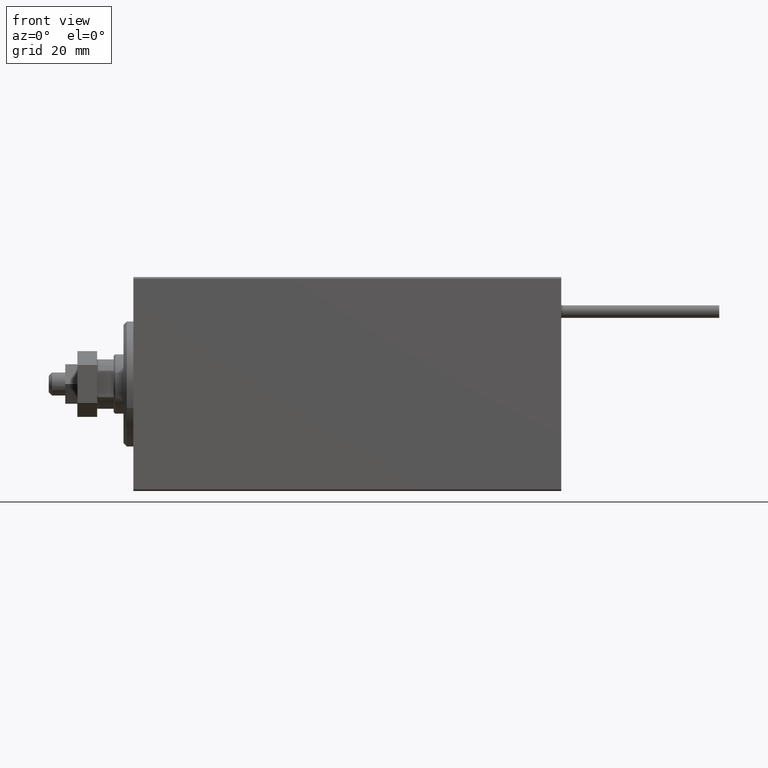
[diagram: clean part render]
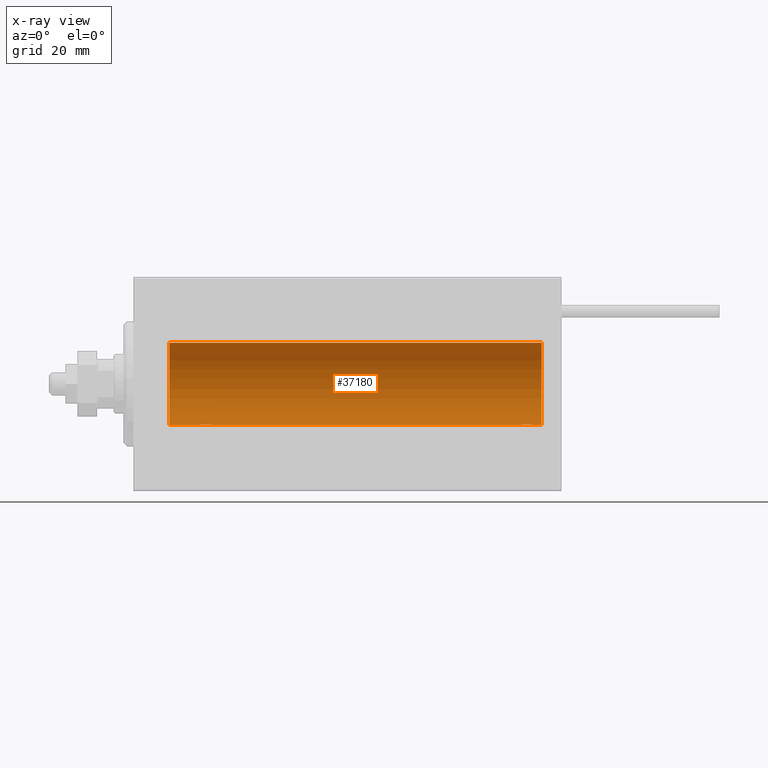
[diagram: x-ray — body ghosted, one internal face saturated and labeled with its STEP entity id]
A machine part, front view, then the same camera in x-ray: the body is ghosted and one INTERNAL B-rep face — a face not visible from any outside direction — is saturated and labeled: STEP entity #37180.
In plain terms, the highlighted cylindrical surface (partial cylindrical patch) has radius 12.5 mm, axis along (-1, -0, -0).
Its self-contained STEP definition (entity closure, byte-faithful):
#708 = CARTESIAN_POINT ( 'NONE',  ( 20.01301208516349206, 0.2624928479599882847, -12.49789934882883458 ) ) ;
#960 = CARTESIAN_POINT ( 'NONE',  ( 24.00000000000000000, 1.530808426277417854E-15, -12.50000000000000000 ) ) ;
#1224 = CARTESIAN_POINT ( 'NONE',  ( 23.79742491916155700, 0.8868029758979399935, -12.46909283808506430 ) ) ;
#1649 = VERTEX_POINT ( 'NONE', #9535 ) ;
#1828 = CARTESIAN_POINT ( 'NONE',  ( 124.0000000000000000, 0.000000000000000000, 0.000000000000000000 ) ) ;
#1910 = CARTESIAN_POINT ( 'NONE',  ( 10.99999999999999645, 0.000000000000000000, 0.000000000000000000 ) ) ;
#3273 = CARTESIAN_POINT ( 'NONE',  ( 120.3865631353301922, 1.797558627508983875, -12.37018026341339194 ) ) ;
#3356 = VERTEX_POINT ( 'NONE', #37943 ) ;
#3362 = EDGE_CURVE ( 'NONE', #1649, #18831, #41268, .T. ) ;
#3771 = CARTESIAN_POINT ( 'NONE',  ( 121.5000000000000284, 0.1306394121199379310, -12.50000000000000178 ) ) ;
#4239 = CARTESIAN_POINT ( 'NONE',  ( 124.0000000000000000, 1.530808498934191521E-15, -12.50000000000000000 ) ) ;
#4511 = CARTESIAN_POINT ( 'NONE',  ( 23.98690384766256400, 0.2633501011236120681, -12.49788564268284041 ) ) ;
#4729 = CARTESIAN_POINT ( 'NONE',  ( 124.0000000000000000, 1.530808498934191521E-15, -12.50000000000000000 ) ) ;
#4756 = CARTESIAN_POINT ( 'NONE',  ( 21.47436412829510033, 1.947190906025044077, -12.34781876294798053 ) ) ;
#5267 = CARTESIAN_POINT ( 'NONE',  ( 23.32102833500698225, 1.507394620545640773, -12.40913174964213184 ) ) ;
#5428 = ORIENTED_EDGE ( 'NONE', *, *, #13773, .T. ) ;
#7114 = ORIENTED_EDGE ( 'NONE', *, *, #14396, .T. ) ;
#7329 = CARTESIAN_POINT ( 'NONE',  ( 117.5000000000000142, -1.169483437805093529E-14, -12.50000000000000000 ) ) ;
#7595 = ORIENTED_EDGE ( 'NONE', *, *, #10037, .F. ) ;
#8044 = LINE ( 'NONE', #4239, #43659 ) ;
#8580 = CARTESIAN_POINT ( 'NONE',  ( 22.64415233770293412, 1.897967064543090165, -12.35517291625592051 ) ) ;
#8827 = CARTESIAN_POINT ( 'NONE',  ( 20.26446744561862801, 1.002494658017155871, -12.46021263690096958 ) ) ;
#9086 = CARTESIAN_POINT ( 'NONE',  ( 20.49398366327207910, 1.322451657002076120, -12.43019346654084956 ) ) ;
#9341 = CARTESIAN_POINT ( 'NONE',  ( 23.00335814299181436, 1.734998657226765939, -12.37922086519035325 ) ) ;
#9535 = CARTESIAN_POINT ( 'NONE',  ( 124.0000000000000000, 0.000000000000000000, 12.50000000000000000 ) ) ;
#9590 = CIRCLE ( 'NONE', #47847, 12.50000000000000000 ) ;
#9696 = DIRECTION ( 'NONE',  ( 0.000000000000000000, 0.000000000000000000, 1.000000000000000000 ) ) ;
#10037 = EDGE_CURVE ( 'NONE', #16404, #3356, #8044, .T. ) ;
#10653 = CARTESIAN_POINT ( 'NONE',  ( 121.2974249191616138, 0.8868029758979325550, -12.46909283808506430 ) ) ;
#10931 = CARTESIAN_POINT ( 'NONE',  ( 19.99999999999999645, -3.966047509268588167E-15, -12.50000000000000000 ) ) ;
#11158 = CARTESIAN_POINT ( 'NONE',  ( 118.2703350612685398, 1.598680238462349301, -12.39873273758732353 ) ) ;
#11402 = CARTESIAN_POINT ( 'NONE',  ( 117.6025227029819717, 0.6455696738844808324, -12.48390768591463384 ) ) ;
#11782 = VERTEX_POINT ( 'NONE', #49660 ) ;
#11887 = DIRECTION ( 'NONE',  ( -1.000000000000000000, -0.000000000000000000, -0.000000000000000000 ) ) ;
#12137 = CARTESIAN_POINT ( 'NONE',  ( 20.77033506126850426, 1.598680238462369951, -12.39873273758732175 ) ) ;
#12236 = DIRECTION ( 'NONE',  ( -1.000000000000000000, -0.000000000000000000, -0.000000000000000000 ) ) ;
#13147 = CARTESIAN_POINT ( 'NONE',  ( 20.10252270298193622, 0.6455696738844897142, -12.48390768591463207 ) ) ;
#13773 = EDGE_CURVE ( 'NONE', #18831, #34876, #9590, .T. ) ;
#14095 = CYLINDRICAL_SURFACE ( 'NONE', #28880, 12.50000000000000000 ) ;
#14098 = VECTOR ( 'NONE', #11887, 1000.000000000000000 ) ;
#14243 = CARTESIAN_POINT ( 'NONE',  ( 117.7644674456187062, 1.002494658017142104, -12.46021263690097669 ) ) ;
#14396 = EDGE_CURVE ( 'NONE', #11782, #3356, #41156, .T. ) ;
#14486 = CARTESIAN_POINT ( 'NONE',  ( 117.9096331999059828, 1.219754986802265462, -12.44082361696003680 ) ) ;
#14731 = CARTESIAN_POINT ( 'NONE',  ( 121.4356177452185506, 0.5201193324741325563, -12.48983485452575337 ) ) ;
#14770 = LINE ( 'NONE', #35074, #14098 ) ;
#15235 = CARTESIAN_POINT ( 'NONE',  ( 120.1441523377029768, 1.897967064543075066, -12.35517291625592406 ) ) ;
#15583 = B_SPLINE_CURVE_WITH_KNOTS ( 'NONE', 3,
 ( #20554, #16987, #708, #40165, #13147, #47031, #8827, #43967, #9086, #12137, #28222, #4756, #47548, #24639, #20297, #36577, #8580, #28725, #9341, #24376, #5267, #39907, #36092, #27967, #1224, #16748, #35588, #4511, #27700, #960 ),
 .UNSPECIFIED., .F., .F.,
 ( 4, 2, 2, 2, 2, 2, 2, 2, 2, 2, 2, 2, 2, 2, 4 ),
 ( 3.611342868676865251E-19, 0.0003914362731607586585, 0.0007828725463215168833, 0.001174308819482275217, 0.001565745092643033550, 0.002348617638964549999, 0.003131490185286066666, 0.003522926458446830420, 0.003914362731607594174, 0.004305799004768357495, 0.004697235277929121683, 0.005088671551089885003, 0.005480107824250649191, 0.005871544097411412512, 0.006262980370572176700 ),
 .UNSPECIFIED. ) ;
#15712 = AXIS2_PLACEMENT_3D ( 'NONE', #1828, #17358, #9696 ) ;
#16075 = CARTESIAN_POINT ( 'NONE',  ( 124.0000000000000000, 1.530808498934191521E-15, -12.50000000000000000 ) ) ;
#16404 = VERTEX_POINT ( 'NONE', #4729 ) ;
#16748 = CARTESIAN_POINT ( 'NONE',  ( 23.89773031393658087, 0.6448065707253023415, -12.48394649977302073 ) ) ;
#16987 = CARTESIAN_POINT ( 'NONE',  ( 19.99999999999999645, 0.1323736289504319763, -12.50000000000000000 ) ) ;
#17358 = DIRECTION ( 'NONE',  ( -1.000000000000000000, 0.000000000000000000, 0.000000000000000000 ) ) ;
#18831 = VERTEX_POINT ( 'NONE', #28591 ) ;
#19011 = CARTESIAN_POINT ( 'NONE',  ( 10.99999999999999645, 1.530808498934191521E-15, -12.50000000000000000 ) ) ;
#19787 = DIRECTION ( 'NONE',  ( -1.000000000000000000, -0.000000000000000000, -0.000000000000000000 ) ) ;
#19898 = LINE ( 'NONE', #16075, #27834 ) ;
#20297 = CARTESIAN_POINT ( 'NONE',  ( 22.26269462454597914, 1.986986967296540119, -12.34109209020652465 ) ) ;
#20554 = CARTESIAN_POINT ( 'NONE',  ( 19.99999999999999645, -3.966047509268588167E-15, -12.50000000000000000 ) ) ;
#22133 = CARTESIAN_POINT ( 'NONE',  ( 121.3977303139366200, 0.6448065707252962353, -12.48394649977302606 ) ) ;
#22380 = CARTESIAN_POINT ( 'NONE',  ( 117.7030078837138518, 0.8876934327478018805, -12.46903010196599659 ) ) ;
#22629 = CARTESIAN_POINT ( 'NONE',  ( 117.9939836632721324, 1.322451657002056358, -12.43019346654085311 ) ) ;
#22886 = CARTESIAN_POINT ( 'NONE',  ( 121.2347074239761611, 1.003863686549161915, -12.46009879577771606 ) ) ;
#23417 = ORIENTED_EDGE ( 'NONE', *, *, #47211, .F. ) ;
#24376 = CARTESIAN_POINT ( 'NONE',  ( 23.21980790594580313, 1.590288205413975309, -12.39864157855465088 ) ) ;
#24639 = CARTESIAN_POINT ( 'NONE',  ( 22.12992629360264729, 2.000049200055402210, -12.33895470450623044 ) ) ;
#25316 = CARTESIAN_POINT ( 'NONE',  ( 124.0000000000000000, 0.000000000000000000, 0.000000000000000000 ) ) ;
#26209 = CARTESIAN_POINT ( 'NONE',  ( 120.7198079059458138, 1.590288205413961986, -12.39864157855465265 ) ) ;
#26467 = CARTESIAN_POINT ( 'NONE',  ( 119.7626946245460147, 1.986986967296522799, -12.34109209020653175 ) ) ;
#27700 = CARTESIAN_POINT ( 'NONE',  ( 24.00000000000000711, 0.1306394121199392910, -12.50000000000000533 ) ) ;
#27828 = CARTESIAN_POINT ( 'NONE',  ( 24.00000000000000000, 1.530808426277417854E-15, -12.50000000000000000 ) ) ;
#27834 = VECTOR ( 'NONE', #12236, 1000.000000000000000 ) ;
#27947 = CIRCLE ( 'NONE', #15712, 12.50000000000000000 ) ;
#27967 = CARTESIAN_POINT ( 'NONE',  ( 23.73470742397611843, 1.003863686549172352, -12.46009879577771606 ) ) ;
#28222 = CARTESIAN_POINT ( 'NONE',  ( 20.99316879552500481, 1.747608771958139906, -12.37764291807175354 ) ) ;
#28591 = CARTESIAN_POINT ( 'NONE',  ( 10.99999999999999645, 0.000000000000000000, 12.50000000000000000 ) ) ;
#28725 = CARTESIAN_POINT ( 'NONE',  ( 22.88656313533016373, 1.797558627508998086, -12.37018026341338839 ) ) ;
#28880 = AXIS2_PLACEMENT_3D ( 'NONE', #25316, #48227, #48477 ) ;
#30035 = CARTESIAN_POINT ( 'NONE',  ( 119.6299262936026793, 2.000049200055385334, -12.33895470450623399 ) ) ;
#30289 = CARTESIAN_POINT ( 'NONE',  ( 121.0073355036432474, 1.321095788880528366, -12.43034574091278266 ) ) ;
#30542 = CARTESIAN_POINT ( 'NONE',  ( 120.8210283350070142, 1.507394620545629671, -12.40913174964213361 ) ) ;
#30784 = CARTESIAN_POINT ( 'NONE',  ( 121.4869038476625889, 0.2633501011236119016, -12.49788564268284041 ) ) ;
#31785 = VERTEX_POINT ( 'NONE', #10931 ) ;
#32973 = DIRECTION ( 'NONE',  ( -1.000000000000000000, 0.000000000000000000, 0.000000000000000000 ) ) ;
#33500 = VECTOR ( 'NONE', #33631, 1000.000000000000000 ) ;
#33631 = DIRECTION ( 'NONE',  ( -1.000000000000000000, -0.000000000000000000, -0.000000000000000000 ) ) ;
#33854 = CARTESIAN_POINT ( 'NONE',  ( 117.5000000000000142, 0.1323736289504215957, -12.50000000000000178 ) ) ;
#34228 = ORIENTED_EDGE ( 'NONE', *, *, #3362, .T. ) ;
#34358 = CARTESIAN_POINT ( 'NONE',  ( 117.5130120851634956, 0.2624928479599785702, -12.49789934882883458 ) ) ;
#34876 = VERTEX_POINT ( 'NONE', #19011 ) ;
#35074 = CARTESIAN_POINT ( 'NONE',  ( 124.0000000000000000, 1.530808498934191521E-15, -12.50000000000000000 ) ) ;
#35588 = CARTESIAN_POINT ( 'NONE',  ( 23.93561774521849728, 0.5201193324741352209, -12.48983485452574982 ) ) ;
#36092 = CARTESIAN_POINT ( 'NONE',  ( 23.58991408680628155, 1.220297236145721609, -12.44076681548080288 ) ) ;
#36577 = CARTESIAN_POINT ( 'NONE',  ( 22.51937350851555308, 1.935814255713574905, -12.34922241902463114 ) ) ;
#36882 = EDGE_CURVE ( 'NONE', #31785, #48203, #15583, .T. ) ;
#37180 = ADVANCED_FACE ( 'NONE', ( #40347 ), #14095, .F. ) ;
#37913 = CARTESIAN_POINT ( 'NONE',  ( 118.4931687955250226, 1.747608771958121920, -12.37764291807175709 ) ) ;
#37943 = CARTESIAN_POINT ( 'NONE',  ( 121.5000000000000284, 1.530808426268740384E-15, -12.50000000000000000 ) ) ;
#38657 = CARTESIAN_POINT ( 'NONE',  ( 120.0193735085155993, 1.935814255713557142, -12.34922241902463114 ) ) ;
#39907 = CARTESIAN_POINT ( 'NONE',  ( 23.50733550364322255, 1.321095788880538136, -12.43034574091277911 ) ) ;
#40165 = CARTESIAN_POINT ( 'NONE',  ( 20.06395648222636652, 0.5184196815546032733, -12.48990118705761532 ) ) ;
#40332 = ORIENTED_EDGE ( 'NONE', *, *, #36882, .T. ) ;
#40347 = FACE_OUTER_BOUND ( 'NONE', #43461, .T. ) ;
#41106 = DIRECTION ( 'NONE',  ( 0.000000000000000000, 0.000000000000000000, 1.000000000000000000 ) ) ;
#41156 = B_SPLINE_CURVE_WITH_KNOTS ( 'NONE', 3,
 ( #7329, #33854, #34358, #42472, #11402, #22380, #14243, #14486, #22629, #11158, #37913, #41981, #42223, #30035, #26467, #38657, #15235, #3273, #46052, #26209, #30542, #30289, #45549, #22886, #10653, #22133, #14731, #30784, #3771, #41736 ),
 .UNSPECIFIED., .F., .F.,
 ( 4, 2, 2, 2, 2, 2, 2, 2, 2, 2, 2, 2, 2, 2, 4 ),
 ( 1.846017744464648771E-18, 0.0003914362731607729158, 0.0007828725463215439884, 0.001174308819482315115, 0.001565745092643086242, 0.002348617638964598138, 0.003131490185286110901, 0.003522926458446867717, 0.003914362731607624532, 0.004305799004768380914, 0.004697235277929136428, 0.005088671551089892810, 0.005480107824250649191, 0.005871544097411406440, 0.006262980370572161955 ),
 .UNSPECIFIED. ) ;
#41196 = EDGE_CURVE ( 'NONE', #31785, #34876, #19898, .T. ) ;
#41268 = LINE ( 'NONE', #49638, #33500 ) ;
#41736 = CARTESIAN_POINT ( 'NONE',  ( 121.5000000000000284, 1.530808426268740384E-15, -12.50000000000000000 ) ) ;
#41981 = CARTESIAN_POINT ( 'NONE',  ( 118.9743641282951074, 1.947190906025027424, -12.34781876294798941 ) ) ;
#42223 = CARTESIAN_POINT ( 'NONE',  ( 119.2378819366838059, 1.999901172190663212, -12.33897869807161563 ) ) ;
#42472 = CARTESIAN_POINT ( 'NONE',  ( 117.5639564822263878, 0.5184196815545927262, -12.48990118705761887 ) ) ;
#43461 = EDGE_LOOP ( 'NONE', ( #7595, #23417, #34228, #5428, #48814, #40332, #44241, #7114 ) ) ;
#43659 = VECTOR ( 'NONE', #19787, 1000.000000000000000 ) ;
#43967 = CARTESIAN_POINT ( 'NONE',  ( 20.40963319990594016, 1.219754986802279451, -12.44082361696003503 ) ) ;
#44241 = ORIENTED_EDGE ( 'NONE', *, *, #47363, .F. ) ;
#45549 = CARTESIAN_POINT ( 'NONE',  ( 121.0899140868063313, 1.220297236145710729, -12.44076681548080998 ) ) ;
#46052 = CARTESIAN_POINT ( 'NONE',  ( 120.5033581429918570, 1.734998657226752616, -12.37922086519036036 ) ) ;
#47031 = CARTESIAN_POINT ( 'NONE',  ( 20.20300788371381273, 0.8876934327478117615, -12.46903010196599304 ) ) ;
#47211 = EDGE_CURVE ( 'NONE', #1649, #16404, #27947, .T. ) ;
#47363 = EDGE_CURVE ( 'NONE', #11782, #48203, #14770, .T. ) ;
#47548 = CARTESIAN_POINT ( 'NONE',  ( 21.73788193668374902, 1.999901172190678533, -12.33897869807161385 ) ) ;
#47847 = AXIS2_PLACEMENT_3D ( 'NONE', #1910, #32973, #41106 ) ;
#48203 = VERTEX_POINT ( 'NONE', #27828 ) ;
#48227 = DIRECTION ( 'NONE',  ( -1.000000000000000000, -0.000000000000000000, -0.000000000000000000 ) ) ;
#48477 = DIRECTION ( 'NONE',  ( 0.000000000000000000, 0.000000000000000000, 1.000000000000000000 ) ) ;
#48814 = ORIENTED_EDGE ( 'NONE', *, *, #41196, .F. ) ;
#49638 = CARTESIAN_POINT ( 'NONE',  ( 124.0000000000000000, 0.000000000000000000, 12.50000000000000000 ) ) ;
#49660 = CARTESIAN_POINT ( 'NONE',  ( 117.5000000000000142, -1.169483437805093529E-14, -12.50000000000000000 ) ) ;